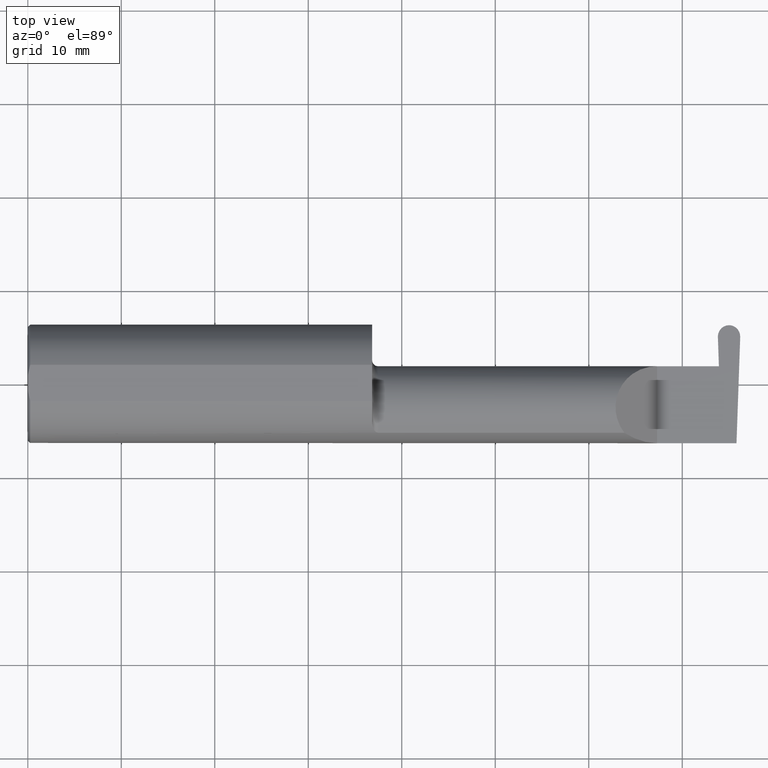
[diagram: clean part render]
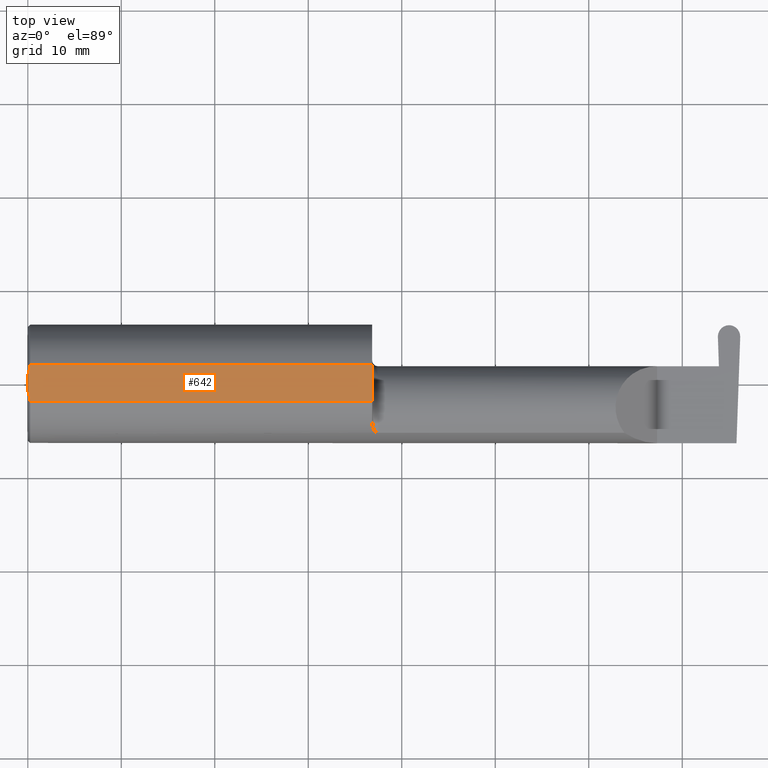
[diagram: same view with one face highlighted and labeled with its STEP entity id]
A machine part, top view. The second image highlights one B-rep face of the part: STEP entity #642.
In plain terms, the highlighted planar face has unit normal (0, 0, 1).
Its self-contained STEP definition (entity closure, byte-faithful):
#9 = CARTESIAN_POINT ( 'NONE',  ( 0.000000000000000000, 0.03090954545120574992, 0.2378499999999998671 ) ) ;
#13 = EDGE_CURVE ( 'NONE', #351, #337, #184, .T. ) ;
#38 = EDGE_CURVE ( 'NONE', #536, #81, #191, .T. ) ;
#42 = CARTESIAN_POINT ( 'NONE',  ( 1.450000000000000178, -0.07650098038587530014, 0.2378499999999998671 ) ) ;
#61 = CARTESIAN_POINT ( 'NONE',  ( 0.002005502345409073024, 0.04647171987093980799, 0.2378499999999998671 ) ) ;
#81 = VERTEX_POINT ( 'NONE', #484 ) ;
#124 = VERTEX_POINT ( 'NONE', #42 ) ;
#131 = EDGE_CURVE ( 'NONE', #351, #124, #281, .T. ) ;
#149 = EDGE_CURVE ( 'NONE', #124, #536, #486, .T. ) ;
#155 = ORIENTED_EDGE ( 'NONE', *, *, #317, .F. ) ;
#184 = B_SPLINE_CURVE_WITH_KNOTS ( 'NONE', 3,
 ( #585, #640, #309, #315 ),
 .UNSPECIFIED., .F., .F.,
 ( 4, 4 ),
 ( 0.01317593029100226111, 0.01435802289191457325 ),
 .UNSPECIFIED. ) ;
#191 = LINE ( 'NONE', #529, #249 ) ;
#204 = CARTESIAN_POINT ( 'NONE',  ( 3.501298404146671484, 0.2498499999999998500, 0.2378499999999998671 ) ) ;
#205 = DIRECTION ( 'NONE',  ( 1.000000000000000000, 0.000000000000000000, 0.000000000000000000 ) ) ;
#230 = B_SPLINE_CURVE_WITH_KNOTS ( 'NONE', 3,
 ( #551, #61, #620, #288 ),
 .UNSPECIFIED., .F., .F.,
 ( 4, 4 ),
 ( 0.01593449416844765903, 0.01712021724825598876 ),
 .UNSPECIFIED. ) ;
#242 = ORIENTED_EDGE ( 'NONE', *, *, #131, .T. ) ;
#249 = VECTOR ( 'NONE', #367, 39.37007874015748143 ) ;
#250 = EDGE_CURVE ( 'NONE', #570, #81, #230, .T. ) ;
#252 = PLANE ( 'NONE',  #382 ) ;
#277 = EDGE_LOOP ( 'NONE', ( #242, #532, #380, #475, #155, #590 ) ) ;
#281 = LINE ( 'NONE', #599, #645 ) ;
#288 = CARTESIAN_POINT ( 'NONE',  ( 0.009999999999999927350, 0.07650098038587520299, 0.2378499999999998671 ) ) ;
#309 = CARTESIAN_POINT ( 'NONE',  ( 0.001983148254845710189, -0.04629825796642594860, 0.2378499999999998671 ) ) ;
#315 = CARTESIAN_POINT ( 'NONE',  ( 0.000000000000000000, -0.03090954545120560767, 0.2378499999999998671 ) ) ;
#317 = EDGE_CURVE ( 'NONE', #337, #570, #550, .T. ) ;
#337 = VERTEX_POINT ( 'NONE', #650 ) ;
#341 = CARTESIAN_POINT ( 'NONE',  ( 0.009999999999999927350, -0.07650098038587520299, 0.2378499999999998671 ) ) ;
#351 = VERTEX_POINT ( 'NONE', #341 ) ;
#367 = DIRECTION ( 'NONE',  ( -1.000000000000000000, -0.000000000000000000, -0.000000000000000000 ) ) ;
#380 = ORIENTED_EDGE ( 'NONE', *, *, #38, .T. ) ;
#382 = AXIS2_PLACEMENT_3D ( 'NONE', #204, #523, #480 ) ;
#394 = CARTESIAN_POINT ( 'NONE',  ( 0.000000000000000000, 0.2498499999999998500, 0.2378499999999998671 ) ) ;
#406 = VECTOR ( 'NONE', #709, 39.37007874015748143 ) ;
#416 = FACE_OUTER_BOUND ( 'NONE', #277, .T. ) ;
#460 = VECTOR ( 'NONE', #611, 39.37007874015748143 ) ;
#475 = ORIENTED_EDGE ( 'NONE', *, *, #250, .F. ) ;
#480 = DIRECTION ( 'NONE',  ( 1.000000000000000000, 0.000000000000000000, -0.000000000000000000 ) ) ;
#484 = CARTESIAN_POINT ( 'NONE',  ( 0.009999999999999927350, 0.07650098038587520299, 0.2378499999999998671 ) ) ;
#486 = LINE ( 'NONE', #706, #406 ) ;
#523 = DIRECTION ( 'NONE',  ( 0.000000000000000000, 0.000000000000000000, 1.000000000000000000 ) ) ;
#529 = CARTESIAN_POINT ( 'NONE',  ( 0.000000000000000000, 0.07650098038587520299, 0.2378499999999998671 ) ) ;
#532 = ORIENTED_EDGE ( 'NONE', *, *, #149, .T. ) ;
#536 = VERTEX_POINT ( 'NONE', #683 ) ;
#550 = LINE ( 'NONE', #394, #460 ) ;
#551 = CARTESIAN_POINT ( 'NONE',  ( 0.000000000000000000, 0.03090954545120574992, 0.2378499999999998671 ) ) ;
#570 = VERTEX_POINT ( 'NONE', #9 ) ;
#585 = CARTESIAN_POINT ( 'NONE',  ( 0.009999999999999927350, -0.07650098038587520299, 0.2378499999999998671 ) ) ;
#590 = ORIENTED_EDGE ( 'NONE', *, *, #13, .F. ) ;
#599 = CARTESIAN_POINT ( 'NONE',  ( 0.000000000000000000, -0.07650098038587520299, 0.2378499999999998671 ) ) ;
#611 = DIRECTION ( 'NONE',  ( -0.000000000000000000, 1.000000000000000000, -0.000000000000000000 ) ) ;
#620 = CARTESIAN_POINT ( 'NONE',  ( 0.005466242398876407227, 0.06169385855649833772, 0.2378499999999998671 ) ) ;
#640 = CARTESIAN_POINT ( 'NONE',  ( 0.005459900170181729989, -0.06167314502012864741, 0.2378499999999998671 ) ) ;
#642 = ADVANCED_FACE ( 'NONE', ( #416 ), #252, .T. ) ;
#645 = VECTOR ( 'NONE', #205, 39.37007874015748143 ) ;
#650 = CARTESIAN_POINT ( 'NONE',  ( 0.000000000000000000, -0.03090954545120560767, 0.2378499999999998671 ) ) ;
#683 = CARTESIAN_POINT ( 'NONE',  ( 1.450000000000000178, 0.07650098038587520299, 0.2378499999999998671 ) ) ;
#706 = CARTESIAN_POINT ( 'NONE',  ( 1.450000000000000178, 0.2498499999999999055, 0.2378499999999998671 ) ) ;
#709 = DIRECTION ( 'NONE',  ( 1.172794833305166028E-17, 1.000000000000000000, -0.000000000000000000 ) ) ;